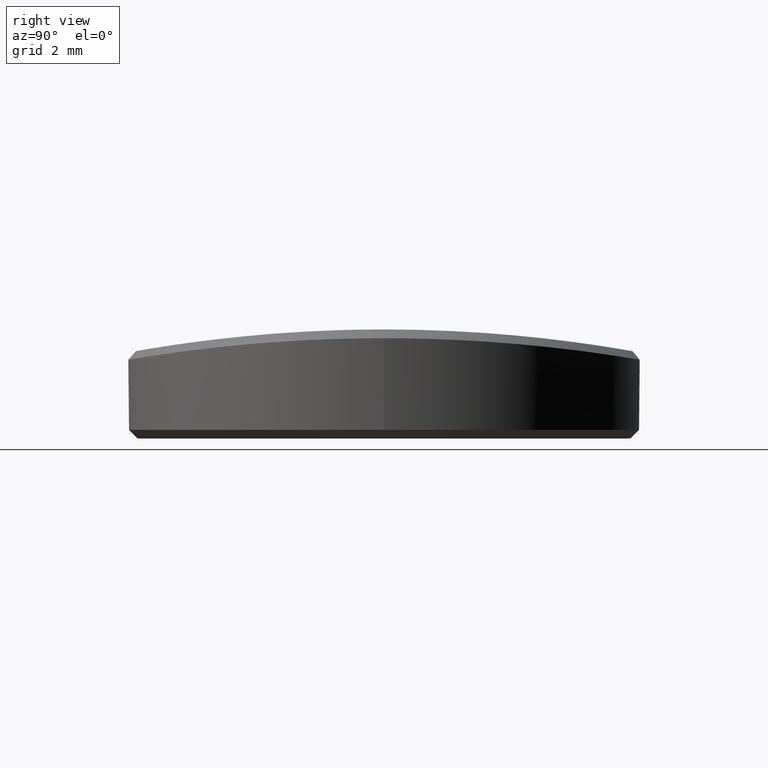
[diagram: clean part render]
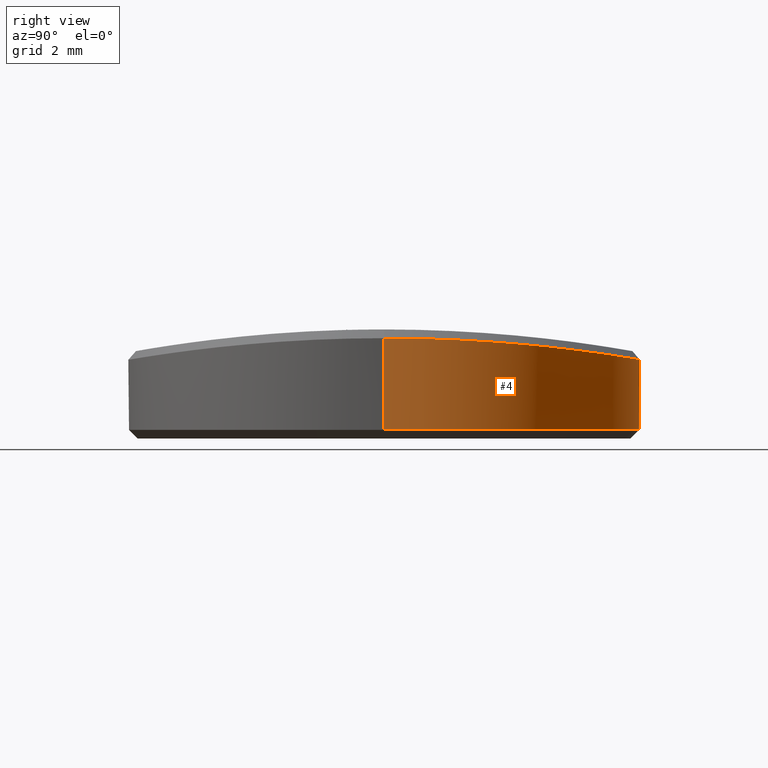
[diagram: same view with one face highlighted and labeled with its STEP entity id]
A machine part, right view. The second image highlights one B-rep face of the part: STEP entity #4.
In plain terms, the highlighted cylindrical surface (partial cylindrical patch) has radius 5.85 mm, axis along (-0, -0, -1).
Its self-contained STEP definition (entity closure, byte-faithful):
#4 = ADVANCED_FACE ( 'NONE', ( #1705 ), #1183, .T. ) ;
#8 = VERTEX_POINT ( 'NONE', #1165 ) ;
#13 = CARTESIAN_POINT ( 'NONE',  ( -5.583669370178141023, 1.745710479170630602, 2.252752072596880151 ) ) ;
#43 = CARTESIAN_POINT ( 'NONE',  ( -2.606191273642994854, 5.237787397284114022, 1.901149713510221106 ) ) ;
#51 = CARTESIAN_POINT ( 'NONE',  ( 5.367950274212946127, 2.327262629023006291, 2.218843895417348389 ) ) ;
#65 = CARTESIAN_POINT ( 'NONE',  ( -4.368635600583296252, 3.891057342284980347, 2.078879122424309500 ) ) ;
#66 = CARTESIAN_POINT ( 'NONE',  ( 1.190780209988201221, 5.727731403619527484, 1.823164343747216032 ) ) ;
#71 = CARTESIAN_POINT ( 'NONE',  ( -5.849999999999999645, 0.000000000000000000, 0.2000000000000005107 ) ) ;
#74 = CARTESIAN_POINT ( 'NONE',  ( 5.569548560108162683, 1.792001354065686280, 2.250486071382419517 ) ) ;
#78 = CARTESIAN_POINT ( 'NONE',  ( -3.244009727739596283, 4.868163265342362322, 1.955238109944705371 ) ) ;
#89 = CARTESIAN_POINT ( 'NONE',  ( -3.924185764372657204, 4.338580061042762281, 2.025719293454604664 ) ) ;
#90 = CARTESIAN_POINT ( 'NONE',  ( 1.605399090074512092, 5.626245279342771077, 1.839914283563657937 ) ) ;
#102 = CARTESIAN_POINT ( 'NONE',  ( -3.919295352930499465, 4.342998364710748405, 2.025165419822312796 ) ) ;
#103 = CARTESIAN_POINT ( 'NONE',  ( 2.829065582226978126, 5.120526366251298533, 1.918741531637461195 ) ) ;
#115 = CARTESIAN_POINT ( 'NONE',  ( -5.081124155078277305, 2.899723887772550857, 2.175798581264229981 ) ) ;
#116 = CARTESIAN_POINT ( 'NONE',  ( 3.312904381799680831, 4.821617378309587920, 1.961768860333868769 ) ) ;
#126 = CARTESIAN_POINT ( 'NONE',  ( 3.268242030311852453, 4.851928431575327494, 1.957521791191752625 ) ) ;
#142 = ORIENTED_EDGE ( 'NONE', *, *, #1637, .T. ) ;
#148 = CARTESIAN_POINT ( 'NONE',  ( 3.547976209167959638, 4.652249731064690863, 1.985023632931986581 ) ) ;
#166 = CARTESIAN_POINT ( 'NONE',  ( -2.959763012449304398, 5.047632239485644767, 1.929542946823485927 ) ) ;
#167 = CARTESIAN_POINT ( 'NONE',  ( 4.177552540272995607, 4.095212824851221178, 2.055344501912360844 ) ) ;
#176 = CARTESIAN_POINT ( 'NONE',  ( 4.157052454398260544, 4.116020918186477751, 2.052879905688773654 ) ) ;
#189 = CARTESIAN_POINT ( 'NONE',  ( 0.000000000000000000, 0.000000000000000000, 6.000000000000000000 ) ) ;
#213 = CARTESIAN_POINT ( 'NONE',  ( 5.179637291097603402, 2.719193297500789974, 2.190337819176772616 ) ) ;
#218 = CARTESIAN_POINT ( 'NONE',  ( 0.3803267324245170888, 5.840803412582006970, 1.804155660013171625 ) ) ;
#227 = CARTESIAN_POINT ( 'NONE',  ( 4.524459955430778280, 3.708340687056341789, 2.098867989951766599 ) ) ;
#231 = CARTESIAN_POINT ( 'NONE',  ( -4.821230536514848453, 3.313470630647945558, 2.138797309545594327 ) ) ;
#232 = CARTESIAN_POINT ( 'NONE',  ( -1.681163904650723406, 5.603278179959879424, 1.843648430470701483 ) ) ;
#241 = CARTESIAN_POINT ( 'NONE',  ( 5.771354464512325144, 0.9572406626820968434, 2.283297655263057280 ) ) ;
#245 = CARTESIAN_POINT ( 'NONE',  ( -4.507136495372269458, 3.729376648159360652, 2.096613717475834360 ) ) ;
#246 = CARTESIAN_POINT ( 'NONE',  ( -2.220929245299336330, 5.412069486761653003, 1.874220337276549797 ) ) ;
#254 = CARTESIAN_POINT ( 'NONE',  ( 5.847638600351667826, 0.1920655019597548030, 2.295992756374706900 ) ) ;
#258 = CARTESIAN_POINT ( 'NONE',  ( -3.745576861151586279, 4.493876105754369910, 2.005917336544432494 ) ) ;
#259 = CARTESIAN_POINT ( 'NONE',  ( -0.7638218091999714465, 5.800711609506312705, 1.810939258170003674 ) ) ;
#270 = CARTESIAN_POINT ( 'NONE',  ( -4.516697367750105663, 3.717793546728353604, 2.097856747914408349 ) ) ;
#283 = CARTESIAN_POINT ( 'NONE',  ( -5.393527732506773198, 2.265605758080615928, 2.222811016619159474 ) ) ;
#294 = CARTESIAN_POINT ( 'NONE',  ( 3.768073745474565861, 4.474930018188604919, 2.008367733557180568 ) ) ;
#301 = DIRECTION ( 'NONE',  ( -0.000000000000000000, -0.000000000000000000, -1.000000000000000000 ) ) ;
#306 = AXIS2_PLACEMENT_3D ( 'NONE', #739, #2028, #562 ) ;
#332 = CARTESIAN_POINT ( 'NONE',  ( 3.970509151620389421, 4.296298570541830841, 2.030996391344854324 ) ) ;
#337 = ORIENTED_EDGE ( 'NONE', *, *, #705, .T. ) ;
#342 = CARTESIAN_POINT ( 'NONE',  ( 3.994327211382520559, 4.274158100182073206, 2.033736428729331802 ) ) ;
#345 = CARTESIAN_POINT ( 'NONE',  ( -5.664636003772448802, 1.466418205104378591, 2.265796700327921798 ) ) ;
#354 = CARTESIAN_POINT ( 'NONE',  ( -5.493544175709287103, 2.014854172710420332, 2.238409234206179210 ) ) ;
#362 = CARTESIAN_POINT ( 'NONE',  ( -5.756174478438737196, 1.047974547446882232, 2.280787337391838587 ) ) ;
#367 = CARTESIAN_POINT ( 'NONE',  ( 5.849999999999999645, 0.09595624366058493060, 2.296389640675963850 ) ) ;
#371 = CARTESIAN_POINT ( 'NONE',  ( -1.375657233548659875, 5.687384582380738074, 1.829871421779391882 ) ) ;
#378 = CARTESIAN_POINT ( 'NONE',  ( 4.537602610172962514, 3.692249339039593181, 2.100583628464546049 ) ) ;
#383 = CARTESIAN_POINT ( 'NONE',  ( 2.539652541083299742, 5.271505446578008680, 1.896044689871365430 ) ) ;
#394 = CARTESIAN_POINT ( 'NONE',  ( 5.168029451239929628, 2.741190662398158118, 2.188612276609431806 ) ) ;
#398 = CARTESIAN_POINT ( 'NONE',  ( -5.366987360267036600, 2.327763556116130506, 2.218711451913111699 ) ) ;
#406 = CARTESIAN_POINT ( 'NONE',  ( 5.686675501226842400, 1.378479273593564036, 2.269381632583660213 ) ) ;
#411 = CARTESIAN_POINT ( 'NONE',  ( -3.641777834456277674, 4.578332842094186894, 1.994842361991917556 ) ) ;
#412 = CARTESIAN_POINT ( 'NONE',  ( -2.083861355436783747, 5.466637251212510762, 1.865614890965980655 ) ) ;
#420 = CARTESIAN_POINT ( 'NONE',  ( 4.529349551319035605, 3.702368872958615054, 2.099505676826622480 ) ) ;
#424 = CARTESIAN_POINT ( 'NONE',  ( -4.058968382415645060, 4.212922791840992609, 2.041244073813963222 ) ) ;
#435 = CARTESIAN_POINT ( 'NONE',  ( -4.650133988120065176, 3.550770170895329425, 2.115424383910148087 ) ) ;
#446 = CARTESIAN_POINT ( 'NONE',  ( -4.496655254763119558, 3.742032023171239619, 2.095252829181217358 ) ) ;
#457 = CARTESIAN_POINT ( 'NONE',  ( 3.376642714921757271, 4.777477377873611708, 1.967914186012179378 ) ) ;
#473 = CARTESIAN_POINT ( 'NONE',  ( 5.849999999999999645, 7.164183775012015436E-16, 6.000000000000000000 ) ) ;
#477 = CARTESIAN_POINT ( 'NONE',  ( 3.725774452429939210, 4.510114581631542663, 2.003794455023834686 ) ) ;
#506 = VERTEX_POINT ( 'NONE', #71 ) ;
#528 = CARTESIAN_POINT ( 'NONE',  ( 5.624226238756269147, 1.610247005447729585, 2.259269400647534898 ) ) ;
#539 = CARTESIAN_POINT ( 'NONE',  ( 5.610139271587875065, 1.658613082512465198, 2.257000626011549382 ) ) ;
#545 = CARTESIAN_POINT ( 'NONE',  ( 2.280736288076715912, 5.387140741615961126, 1.878126040796778806 ) ) ;
#552 = CARTESIAN_POINT ( 'NONE',  ( 4.283415732349283189, 3.984614521857469782, 2.068248874640216783 ) ) ;
#556 = CARTESIAN_POINT ( 'NONE',  ( -4.030612345513333139, 4.239956356230680790, 2.037940018444801549 ) ) ;
#557 = CARTESIAN_POINT ( 'NONE',  ( -1.539362852713601182, 5.644200408645211553, 1.836968501980852819 ) ) ;
#562 = DIRECTION ( 'NONE',  ( 1.000000000000000000, 0.000000000000000000, 0.000000000000000000 ) ) ;
#566 = CARTESIAN_POINT ( 'NONE',  ( 4.336949315899835788, 3.925988892868450986, 2.074920073782472230 ) ) ;
#569 = CARTESIAN_POINT ( 'NONE',  ( -3.692620153349623013, 4.537300952717241209, 2.000240310321776072 ) ) ;
#570 = CARTESIAN_POINT ( 'NONE',  ( -1.235918735989061767, 5.718736854187141283, 1.824664308211790154 ) ) ;
#581 = CARTESIAN_POINT ( 'NONE',  ( 4.867175327965475695, 3.245491916795070431, 2.145206304013703491 ) ) ;
#585 = CARTESIAN_POINT ( 'NONE',  ( -3.323418929774441644, 4.815038824961376918, 1.962714038214857792 ) ) ;
#586 = CARTESIAN_POINT ( 'NONE',  ( 2.147315595145171230, 5.442534232966238505, 1.869442481157997271 ) ) ;
#597 = CARTESIAN_POINT ( 'NONE',  ( -4.998596629410877235, 3.041756003177448875, 2.163793051682840307 ) ) ;
#607 = CARTESIAN_POINT ( 'NONE',  ( -4.588237106477108362, 3.630679832522828665, 2.107176184946987441 ) ) ;
#638 = CARTESIAN_POINT ( 'NONE',  ( 3.928994795316044897, 4.334225538387255661, 2.026264643323831827 ) ) ;
#641 = CARTESIAN_POINT ( 'NONE',  ( 5.850000000003137579, 2.505704322103076828E-14, 2.296389780047419116 ) ) ;
#656 = CARTESIAN_POINT ( 'NONE',  ( -3.105272289173445888, 4.958235362402946045, 1.942447280731172565 ) ) ;
#661 = ORIENTED_EDGE ( 'NONE', *, *, #1121, .F. ) ;
#669 = DIRECTION ( 'NONE',  ( -0.000000000000000000, -0.000000000000000000, -1.000000000000000000 ) ) ;
#674 = B_SPLINE_CURVE_WITH_KNOTS ( 'NONE', 3,
 ( #1163, #1680, #2001, #1359, #1181, #1822, #362, #2010, #1037, #1701, #345, #1673, #13, #1171, #1831, #354, #1007, #283, #2083, #398, #1262, #903, #2072, #770, #781, #1921, #1090, #115, #597, #938, #1740, #1050, #1438, #231, #1565, #1752, #435, #607, #270, #927, #245, #446, #1102, #891, #65, #1763, #914, #1225, #2059, #1714, #1896, #1448, #1238, #1590, #1601, #1553, #1250, #424, #556, #1578, #1909, #733, #89, #102, #1212, #1077, #1871, #1400, #258, #2046, #1412, #569, #1885, #411, #758, #1064, #1727, #585, #78, #1426, #794, #1304, #656, #166, #1932, #948, #1386, #1065, #1702, #43, #904, #1540, #246, #1872, #1427, #412, #1051, #1078, #232, #1690, #892, #557, #371, #570, #746, #1897, #259, #708, #2024, #915, #1401, #218, #1554, #867, #66, #1251, #2047, #2060, #90, #1373, #1728, #1025, #1226, #586, #1239, #545, #1528, #1201, #383, #879, #1213, #1753, #1612, #103, #2096, #771, #2127, #2085, #126, #1764, #116, #457, #783, #148, #1952, #1449, #1284, #477, #1112, #294, #1124, #960, #638, #1622, #1135, #1820, #1810, #332, #342, #1989, #1305, #989, #176, #167, #831, #1196, #552, #1221, #566, #1208, #1736, #1857, #1073, #1185, #1525, #227, #420, #378, #1723, #887, #692, #1234, #1574, #1046, #581, #703, #1396, #1881, #1368, #1355, #1867, #1536, #394, #213, #2007, #1034, #1697, #51, #717, #1710, #1381, #1561, #1549, #74, #539, #528, #729, #406, #1060, #899, #2031, #241, #742, #1845, #2055, #1892, #254, #367, #1022 ),
 .UNSPECIFIED., .F., .F.,
 ( 4, 2, 2, 2, 2, 1, 2, 2, 1, 2, 2, 1, 1, 2, 2, 1, 1, 1, 2, 2, 1, 1, 2, 2, 2, 1, 1, 1, 2, 2, 1, 1, 1, 2, 2, 2, 1, 2, 2, 2, 1, 1, 1, 1, 2, 2, 1, 1, 1, 2, 2, 2, 1, 1, 1, 2, 2, 1, 1, 1, 2, 2, 1, 1, 2, 2, 1, 1, 2, 2, 2, 2, 2, 2, 2, 1, 2, 2, 1, 2, 2, 1, 1, 2, 2, 1, 1, 1, 2, 2, 1, 1, 2, 2, 2, 1, 1, 1, 2, 2, 1, 1, 1, 2, 2, 2, 1, 2, 2, 2, 1, 1, 1, 2, 2, 1, 1, 1, 2, 2, 2, 1, 1, 1, 2, 2, 1, 1, 1, 2, 2, 1, 1, 2, 2, 1, 2, 2, 1, 2, 2, 4 ),
 ( 0.000000000000000000, 0.01562470243699142468, 0.02343705365548713268, 0.03124940487398284242, 0.03515558048323069035, 0.03906175609247854869, 0.04687410731097423067, 0.05078028292022207513, 0.05468645852946991265, 0.06249880974796560157, 0.06445189755258949604, 0.06640498535721341133, 0.07031116096646113089, 0.07812351218495657001, 0.07910005608726844439, 0.08007659998958033265, 0.08202968779420412304, 0.08593586340345174546, 0.09374821462194699029, 0.09472475852425893406, 0.09570130242657086395, 0.09765439023119465434, 0.1015605658404422074, 0.1093729170589373273, 0.1098611890100932575, 0.1103494609612491600, 0.1113260048635610483, 0.1132790926681848387, 0.1171852682774324611, 0.1174294042530104054, 0.1176735402285883497, 0.1181618121797443771, 0.1191383560820563348, 0.1210914438866802362, 0.1249976194959280112, 0.1259741633982399689, 0.1269507073005519127, 0.1289037951051758280, 0.1328099707144236585, 0.1330541066900016722, 0.1332982426655797414, 0.1337865146167357411, 0.1347630585190477959, 0.1367161463236720165, 0.1406223219329204022, 0.1411105938840764851, 0.1415988658352325402, 0.1425754097375445950, 0.1445284975421686491, 0.1484346731514168405, 0.1562470243699132233, 0.1572235682722253058, 0.1582001121745373606, 0.1601531999791614980, 0.1640593755884097449, 0.1718717268069063220, 0.1728482707092184045, 0.1738248146115304871, 0.1757779024161545689, 0.1796840780254027881, 0.1874964292438991709, 0.1894495170485233082, 0.1914026048531474455, 0.1953087804623957480, 0.2031211316808923251, 0.2050742194855164624, 0.2070273072901405720, 0.2109334828993888467, 0.2187458341178853682, 0.2265581853363819453, 0.2343705365548784947, 0.2499952389918715656, 0.2656199414288646921, 0.2812446438658577352, 0.2851508194751060654, 0.2890569950843543401, 0.2968693463028508894, 0.3007755219120992196, 0.3046816975213474943, 0.3124940487398440436, 0.3144471365444682087, 0.3164002243490923183, 0.3203063999583405375, 0.3281187511768368648, 0.3290952950791489195, 0.3300718389814609743, 0.3320249267860849729, 0.3359311023953330255, 0.3437434536138290753, 0.3447199975161411301, 0.3456965414184531293, 0.3476496292230770724, 0.3515558048323248475, 0.3593681560508205086, 0.3598564280019764250, 0.3603446999531324524, 0.3613212438554443962, 0.3632743316600682837, 0.3671805072693161698, 0.3674246432448941557, 0.3676687792204721972, 0.3681570511716280025, 0.3691335950739398353, 0.3710866828785633897, 0.3749928584878104987, 0.3759694023901222204, 0.3769459462924339421, 0.3788990340970573856, 0.3828052097063041614, 0.3832934816574599668, 0.3837817536086158277, 0.3847582975109273828, 0.3867113853155505487, 0.3906175609247969360, 0.3911058328759527414, 0.3915941048271085467, 0.3925706487294201574, 0.3945237365340433788, 0.3984299121432897661, 0.4062422633617825407, 0.4072188072640940959, 0.4081953511664056511, 0.4101484389710288725, 0.4140546145802751488, 0.4218669657987677568, 0.4228435097010793120, 0.4238200536033909227, 0.4257731414080140331, 0.4296793170172603094, 0.4374916682357528064, 0.4394447560403760278, 0.4413978438449991382, 0.4453040194542453589, 0.4531163706727378560, 0.4570225462819840767, 0.4609287218912302975, 0.4687410731097227945, 0.4726472487189689042, 0.4765534243282151250, 0.4843657755467075665, 0.4921781267652000080, 0.4999904779836923940 ),
 .UNSPECIFIED. ) ;
#692 = CARTESIAN_POINT ( 'NONE',  ( 4.633133475778357990, 3.572252651257928679, 2.113175509777406536 ) ) ;
#703 = CARTESIAN_POINT ( 'NONE',  ( 4.875247294039774637, 3.233360756393804714, 2.146337410923344180 ) ) ;
#705 = EDGE_CURVE ( 'NONE', #1479, #506, #1985, .T. ) ;
#708 = CARTESIAN_POINT ( 'NONE',  ( -0.6691824248088438232, 5.812373938070344970, 1.808967761784147088 ) ) ;
#717 = CARTESIAN_POINT ( 'NONE',  ( 5.412223067964446521, 2.220557431316037444, 2.225710442756430929 ) ) ;
#729 = CARTESIAN_POINT ( 'NONE',  ( 5.649957647369139302, 1.517496222796903771, 2.263427446822189992 ) ) ;
#733 = CARTESIAN_POINT ( 'NONE',  ( -3.927720581938957789, 4.335379371778359747, 2.026120126516981923 ) ) ;
#739 = CARTESIAN_POINT ( 'NONE',  ( 0.000000000000000000, 0.000000000000000000, 0.2000000000000005107 ) ) ;
#742 = CARTESIAN_POINT ( 'NONE',  ( 5.794458559663502761, 0.8142549055208082587, 2.287120738884988569 ) ) ;
#746 = CARTESIAN_POINT ( 'NONE',  ( -1.050395605062403481, 5.755702859101798907, 1.818500243929346949 ) ) ;
#750 = DIRECTION ( 'NONE',  ( -0.000000000000000000, -0.000000000000000000, -1.000000000000000000 ) ) ;
#752 = AXIS2_PLACEMENT_3D ( 'NONE', #189, #669, #1994 ) ;
#758 = CARTESIAN_POINT ( 'NONE',  ( -3.571516918765737181, 4.633708359877612537, 1.987489366177601857 ) ) ;
#770 = CARTESIAN_POINT ( 'NONE',  ( -5.152048263178179432, 2.771110329100462621, 2.186242651624255906 ) ) ;
#771 = CARTESIAN_POINT ( 'NONE',  ( 3.041289738415153820, 4.998884367659465866, 1.936631650157296880 ) ) ;
#781 = CARTESIAN_POINT ( 'NONE',  ( -5.147279847652229456, 2.779952800158707493, 2.185537012103968557 ) ) ;
#783 = CARTESIAN_POINT ( 'NONE',  ( 3.433036558636147095, 4.736984871447344148, 1.973483265150593136 ) ) ;
#794 = CARTESIAN_POINT ( 'NONE',  ( -3.210496530286345074, 4.890334604018058862, 1.952107426806933610 ) ) ;
#831 = CARTESIAN_POINT ( 'NONE',  ( 4.207270849087096920, 4.064814002091702072, 2.058930619505761062 ) ) ;
#867 = CARTESIAN_POINT ( 'NONE',  ( 0.9523342281979474411, 5.775239576497652294, 1.815243016050009928 ) ) ;
#879 = CARTESIAN_POINT ( 'NONE',  ( 2.671345463622348593, 5.205424972763312397, 1.906067642728524580 ) ) ;
#887 = CARTESIAN_POINT ( 'NONE',  ( 4.578227725425624506, 3.641906945937392948, 2.105911107773411839 ) ) ;
#891 = CARTESIAN_POINT ( 'NONE',  ( -4.418664091083211787, 3.834300106110881234, 2.085209371718220073 ) ) ;
#892 = CARTESIAN_POINT ( 'NONE',  ( -1.609625478272386667, 5.624251165884537329, 1.840229132289892711 ) ) ;
#899 = CARTESIAN_POINT ( 'NONE',  ( 5.745467464622209697, 1.101954756993922535, 2.279026936102499956 ) ) ;
#903 = CARTESIAN_POINT ( 'NONE',  ( -5.270249516015925728, 2.542209063947307612, 2.203896399512343507 ) ) ;
#904 = CARTESIAN_POINT ( 'NONE',  ( -2.454691480103999179, 5.311589452026530545, 1.889894753321293086 ) ) ;
#914 = CARTESIAN_POINT ( 'NONE',  ( -4.330180054249814781, 3.933452095435138407, 2.074074244377926757 ) ) ;
#915 = CARTESIAN_POINT ( 'NONE',  ( -0.1933376377655410816, 5.849900152875240344, 1.802603818008545522 ) ) ;
#927 = CARTESIAN_POINT ( 'NONE',  ( -4.514062142523624921, 3.720990801545738691, 2.097513939068155420 ) ) ;
#938 = CARTESIAN_POINT ( 'NONE',  ( -4.920070341261739699, 3.166323818699254389, 2.152609436805905663 ) ) ;
#948 = CARTESIAN_POINT ( 'NONE',  ( -2.748838709697592364, 5.163962856847356342, 1.912265515049686782 ) ) ;
#957 = VECTOR ( 'NONE', #750, 1000.000000000000000 ) ;
#960 = CARTESIAN_POINT ( 'NONE',  ( 3.886973822284908842, 4.372274125379764342, 2.021499660806148846 ) ) ;
#965 = ORIENTED_EDGE ( 'NONE', *, *, #1694, .T. ) ;
#989 = CARTESIAN_POINT ( 'NONE',  ( 4.147314353805876763, 4.125840874158924976, 2.051712804862482642 ) ) ;
#1007 = CARTESIAN_POINT ( 'NONE',  ( -5.440904859052966280, 2.151471113591122197, 2.230158292290976174 ) ) ;
#1022 = CARTESIAN_POINT ( 'NONE',  ( 5.850000000003137579, 2.505704322103076828E-14, 2.296389780047419116 ) ) ;
#1025 = CARTESIAN_POINT ( 'NONE',  ( 1.876974630391354149, 5.540910280789193898, 1.853743809216538141 ) ) ;
#1034 = CARTESIAN_POINT ( 'NONE',  ( 5.236171165137804451, 2.609450376801705662, 2.198783544912051191 ) ) ;
#1037 = CARTESIAN_POINT ( 'NONE',  ( -5.718386746963068035, 1.234828722546688295, 2.274578002344213257 ) ) ;
#1046 = CARTESIAN_POINT ( 'NONE',  ( 4.813846495809793957, 3.325153085740697456, 2.137746778979585205 ) ) ;
#1050 = CARTESIAN_POINT ( 'NONE',  ( -4.851955404796779447, 3.268202479152973350, 2.143077983267249742 ) ) ;
#1051 = CARTESIAN_POINT ( 'NONE',  ( -1.926256609803503217, 5.525217954497148476, 1.856290008041909356 ) ) ;
#1060 = CARTESIAN_POINT ( 'NONE',  ( 5.717851024846801522, 1.239952560235295875, 2.274487167843591617 ) ) ;
#1064 = CARTESIAN_POINT ( 'NONE',  ( -3.512757916713803219, 4.678174392195935560, 1.981491094258466701 ) ) ;
#1065 = CARTESIAN_POINT ( 'NONE',  ( -2.715081699909991819, 5.181793471765507419, 1.909592530519665710 ) ) ;
#1073 = CARTESIAN_POINT ( 'NONE',  ( 4.394059859503482102, 3.862104149128380293, 2.082101243541222946 ) ) ;
#1077 = CARTESIAN_POINT ( 'NONE',  ( -3.895033738819371205, 4.364803033026313450, 2.022425545345267750 ) ) ;
#1078 = CARTESIAN_POINT ( 'NONE',  ( -1.792157905072499391, 5.569495939878746249, 1.849139404223250294 ) ) ;
#1090 = CARTESIAN_POINT ( 'NONE',  ( -5.120215536296703007, 2.829628376765722653, 2.181540840777834944 ) ) ;
#1102 = CARTESIAN_POINT ( 'NONE',  ( -4.471544561703061582, 3.772092672113532164, 2.092003531817490547 ) ) ;
#1112 = CARTESIAN_POINT ( 'NONE',  ( 3.738284507125646083, 4.499770683318368825, 2.005142255407300844 ) ) ;
#1121 = EDGE_CURVE ( 'NONE', #8, #506, #1863, .T. ) ;
#1124 = CARTESIAN_POINT ( 'NONE',  ( 3.830005812450175018, 4.422383762197619639, 2.015141132210775510 ) ) ;
#1135 = CARTESIAN_POINT ( 'NONE',  ( 3.932175260194847866, 4.331339439794406942, 2.026625763922005774 ) ) ;
#1163 = CARTESIAN_POINT ( 'NONE',  ( -5.849999999999999645, 5.810646018164500326E-16, 2.296389780299097350 ) ) ;
#1165 = CARTESIAN_POINT ( 'NONE',  ( -5.849999999999999645, 5.810646018164500326E-16, 2.296389780299097350 ) ) ;
#1171 = CARTESIAN_POINT ( 'NONE',  ( -5.569954131890729521, 1.788957012197931018, 2.250557735540422932 ) ) ;
#1181 = CARTESIAN_POINT ( 'NONE',  ( -5.800610019621201374, 0.7645505513365433714, 2.288145099401496019 ) ) ;
#1183 = CYLINDRICAL_SURFACE ( 'NONE', #752, 5.849999999999999645 ) ;
#1185 = CARTESIAN_POINT ( 'NONE',  ( 4.450350775390213620, 3.797488034149842928, 2.089259018739975993 ) ) ;
#1196 = CARTESIAN_POINT ( 'NONE',  ( 4.233953491683037917, 4.036918829534315911, 2.062184406873219356 ) ) ;
#1201 = CARTESIAN_POINT ( 'NONE',  ( 2.388061931300731633, 5.340742781491494284, 1.885355118791219420 ) ) ;
#1208 = CARTESIAN_POINT ( 'NONE',  ( 4.342833274201627347, 3.919482304905172576, 2.075656240523295448 ) ) ;
#1212 = CARTESIAN_POINT ( 'NONE',  ( -3.911978084704501146, 4.349597984835233966, 2.024337463601399989 ) ) ;
#1213 = CARTESIAN_POINT ( 'NONE',  ( 2.770718049136225325, 5.152259533497916877, 1.914015089051340990 ) ) ;
#1221 = CARTESIAN_POINT ( 'NONE',  ( 4.311192616763355190, 3.954400103712106151, 2.071701043860986857 ) ) ;
#1225 = CARTESIAN_POINT ( 'NONE',  ( -4.327266794804970118, 3.936656801892227442, 2.073710567474809086 ) ) ;
#1226 = CARTESIAN_POINT ( 'NONE',  ( 2.011632450154223317, 5.494702493971550972, 1.861169753202346788 ) ) ;
#1234 = CARTESIAN_POINT ( 'NONE',  ( 4.677338344061116260, 3.513868150720842465, 2.119112844620455238 ) ) ;
#1238 = CARTESIAN_POINT ( 'NONE',  ( -4.217255017377139481, 4.054569357582546552, 2.060137442465837854 ) ) ;
#1239 = CARTESIAN_POINT ( 'NONE',  ( 2.260726910709280890, 5.395573790764061961, 1.876806856659841261 ) ) ;
#1250 = CARTESIAN_POINT ( 'NONE',  ( -4.090770159296998720, 4.181905829794488660, 2.044992324593081445 ) ) ;
#1251 = CARTESIAN_POINT ( 'NONE',  ( 1.235120271155364380, 5.718322714467542589, 1.824729806261661480 ) ) ;
#1262 = CARTESIAN_POINT ( 'NONE',  ( -5.339073003924452721, 2.391781809392129698, 2.214413061566720575 ) ) ;
#1278 = VERTEX_POINT ( 'NONE', #641 ) ;
#1280 = LINE ( 'NONE', #473, #2020 ) ;
#1284 = CARTESIAN_POINT ( 'NONE',  ( 3.717491966607634257, 4.516943910215488245, 2.002903598633758442 ) ) ;
#1304 = CARTESIAN_POINT ( 'NONE',  ( -3.178819269085211729, 4.911081071908640183, 1.949168956640831674 ) ) ;
#1305 = CARTESIAN_POINT ( 'NONE',  ( 4.088215497714707602, 4.184908880116929630, 2.044659919370467538 ) ) ;
#1337 = CARTESIAN_POINT ( 'NONE',  ( 5.849999999999999645, 7.164183775012015436E-16, 0.2000000000000005107 ) ) ;
#1355 = CARTESIAN_POINT ( 'NONE',  ( 5.045464680468866980, 2.963425390972042717, 2.170558015186441203 ) ) ;
#1359 = CARTESIAN_POINT ( 'NONE',  ( -5.812052018139510778, 0.6722080516415375184, 2.290050786257389781 ) ) ;
#1368 = CARTESIAN_POINT ( 'NONE',  ( 4.956536795764288073, 3.107973030490773336, 2.157814390670937055 ) ) ;
#1373 = CARTESIAN_POINT ( 'NONE',  ( 1.744877547203237400, 5.583928983314592642, 1.846793946277019094 ) ) ;
#1381 = CARTESIAN_POINT ( 'NONE',  ( 5.440040000144650278, 2.151524272092336876, 2.230041898870996686 ) ) ;
#1386 = CARTESIAN_POINT ( 'NONE',  ( -2.736914513562085816, 5.170295075396661666, 1.911317355810483454 ) ) ;
#1393 = CARTESIAN_POINT ( 'NONE',  ( -5.849999999999999645, 0.000000000000000000, 6.000000000000000000 ) ) ;
#1396 = CARTESIAN_POINT ( 'NONE',  ( 4.889095368755313586, 3.212382983743534037, 2.148282394558468145 ) ) ;
#1400 = CARTESIAN_POINT ( 'NONE',  ( -3.797085010190871301, 4.450692118299259370, 2.011513464403153595 ) ) ;
#1401 = CARTESIAN_POINT ( 'NONE',  ( 0.1872473381581420682, 5.850098262007159988, 1.802569576816725361 ) ) ;
#1412 = CARTESIAN_POINT ( 'NONE',  ( -3.702845520634601151, 4.528959989088982674, 2.001333001617710661 ) ) ;
#1426 = CARTESIAN_POINT ( 'NONE',  ( -3.231648174375197247, 4.876382941001926596, 1.954079240677468965 ) ) ;
#1427 = CARTESIAN_POINT ( 'NONE',  ( -2.151603646322150176, 5.440008672702905557, 1.869821807605360542 ) ) ;
#1438 = CARTESIAN_POINT ( 'NONE',  ( -4.839748750070599570, 3.286251775361767713, 2.141375520701544577 ) ) ;
#1448 = CARTESIAN_POINT ( 'NONE',  ( -4.266392392387214016, 4.002619653856773319, 2.066161503744046612 ) ) ;
#1449 = CARTESIAN_POINT ( 'NONE',  ( 3.714363715220030837, 4.519518323203068455, 2.002567511567118430 ) ) ;
#1479 = VERTEX_POINT ( 'NONE', #1337 ) ;
#1525 = CARTESIAN_POINT ( 'NONE',  ( 4.493947773566835835, 3.745498623841818198, 2.094893058364026395 ) ) ;
#1528 = CARTESIAN_POINT ( 'NONE',  ( 2.323595718612136540, 5.368793749267695148, 1.880988989882558915 ) ) ;
#1536 = CARTESIAN_POINT ( 'NONE',  ( 5.161592724080502848, 2.753286510077219251, 2.187657105235128796 ) ) ;
#1540 = CARTESIAN_POINT ( 'NONE',  ( -2.326528050995971153, 5.368252294977161831, 1.881089856201779709 ) ) ;
#1549 = CARTESIAN_POINT ( 'NONE',  ( 5.525233489471677473, 1.926213520892088304, 2.243417166046448585 ) ) ;
#1553 = CARTESIAN_POINT ( 'NONE',  ( -4.112717259297682837, 4.160323738669728044, 2.047589868536926705 ) ) ;
#1554 = CARTESIAN_POINT ( 'NONE',  ( 0.7638774693596748211, 5.803113314388320454, 1.810534840299687032 ) ) ;
#1561 = CARTESIAN_POINT ( 'NONE',  ( 5.466655439693976604, 2.083812933088633468, 2.234199996084178519 ) ) ;
#1565 = CARTESIAN_POINT ( 'NONE',  ( -4.776542690130606061, 3.377976912277203869, 2.132609862363298525 ) ) ;
#1574 = CARTESIAN_POINT ( 'NONE',  ( 4.762133789907011305, 3.399063875381677313, 2.130601787045095730 ) ) ;
#1578 = CARTESIAN_POINT ( 'NONE',  ( -3.978694125782041624, 4.288910838855160002, 2.031924168253079976 ) ) ;
#1590 = CARTESIAN_POINT ( 'NONE',  ( -4.179307454571595137, 4.093858721675335488, 2.055531201279192643 ) ) ;
#1601 = CARTESIAN_POINT ( 'NONE',  ( -4.124882101232455689, 4.148262832558561541, 2.049035649377754176 ) ) ;
#1612 = CARTESIAN_POINT ( 'NONE',  ( 2.799260131922840067, 5.136805408760934277, 1.916319187063833418 ) ) ;
#1622 = CARTESIAN_POINT ( 'NONE',  ( 3.929357167874984569, 4.333896153217845715, 2.026305829633076261 ) ) ;
#1637 = EDGE_CURVE ( 'NONE', #8, #1278, #674, .T. ) ;
#1673 = CARTESIAN_POINT ( 'NONE',  ( -5.626077637626504924, 1.605996658030719226, 2.259559280247798618 ) ) ;
#1680 = CARTESIAN_POINT ( 'NONE',  ( -5.849999999999998757, 0.1917408704044361312, 2.296389806036200021 ) ) ;
#1690 = CARTESIAN_POINT ( 'NONE',  ( -1.656485381012256619, 5.610628444278757065, 1.842451557942233364 ) ) ;
#1694 = EDGE_CURVE ( 'NONE', #1278, #1479, #1280, .T. ) ;
#1697 = CARTESIAN_POINT ( 'NONE',  ( 5.310704324162053069, 2.456664739126872554, 2.210040465651208930 ) ) ;
#1701 = CARTESIAN_POINT ( 'NONE',  ( -5.697616173499815417, 1.327372932277313344, 2.271179439051856264 ) ) ;
#1702 = CARTESIAN_POINT ( 'NONE',  ( -2.682357981541411807, 5.198895295458144439, 1.907022838658725794 ) ) ;
#1705 = FACE_OUTER_BOUND ( 'NONE', #1967, .T. ) ;
#1710 = CARTESIAN_POINT ( 'NONE',  ( 5.421956658463043865, 2.196697041087947611, 2.227223638169973263 ) ) ;
#1714 = CARTESIAN_POINT ( 'NONE',  ( -4.312105730501179401, 3.953276324355065707, 2.071820713387466650 ) ) ;
#1723 = CARTESIAN_POINT ( 'NONE',  ( 4.549919985635467512, 3.677094435925353011, 2.102194528932972872 ) ) ;
#1727 = CARTESIAN_POINT ( 'NONE',  ( -3.397412565640295590, 4.763320602244056623, 1.969900278315811049 ) ) ;
#1728 = CARTESIAN_POINT ( 'NONE',  ( 1.787471925055975630, 5.570427687352633050, 1.848981354108185648 ) ) ;
#1736 = CARTESIAN_POINT ( 'NONE',  ( 4.351546471361229962, 3.909806349879905607, 2.076748390429151936 ) ) ;
#1740 = CARTESIAN_POINT ( 'NONE',  ( -4.856946856382162281, 3.260786191821949398, 2.143775145173192787 ) ) ;
#1752 = CARTESIAN_POINT ( 'NONE',  ( -4.735631214239726106, 3.434909129979387465, 2.127012128518339651 ) ) ;
#1753 = CARTESIAN_POINT ( 'NONE',  ( 2.779441056323633585, 5.147556168520243780, 1.914716994171271169 ) ) ;
#1763 = CARTESIAN_POINT ( 'NONE',  ( -4.330834438100961137, 3.932732386505171984, 2.074155928635368795 ) ) ;
#1764 = CARTESIAN_POINT ( 'NONE',  ( 3.286044945771525505, 4.839888850810044829, 1.959210563610984890 ) ) ;
#1810 = CARTESIAN_POINT ( 'NONE',  ( 3.947087387031469330, 4.317768451605171087, 2.028321773931719640 ) ) ;
#1820 = CARTESIAN_POINT ( 'NONE',  ( 3.936482065690591892, 4.327428330941256895, 2.027114988442340060 ) ) ;
#1822 = CARTESIAN_POINT ( 'NONE',  ( -5.772573953176170392, 0.9534170652924685019, 2.283497148976392221 ) ) ;
#1831 = CARTESIAN_POINT ( 'NONE',  ( -5.540170399066727924, 1.879166882467748545, 2.245811492784920205 ) ) ;
#1845 = CARTESIAN_POINT ( 'NONE',  ( 5.812111193260107278, 0.6715347032444012321, 2.290060651435231076 ) ) ;
#1857 = CARTESIAN_POINT ( 'NONE',  ( 4.364513864936125032, 3.895357408693882473, 2.078376173699174156 ) ) ;
#1863 = LINE ( 'NONE', #1393, #957 ) ;
#1867 = CARTESIAN_POINT ( 'NONE',  ( 5.113864229564787145, 2.842351177499351511, 2.180584967814207076 ) ) ;
#1871 = CARTESIAN_POINT ( 'NONE',  ( -3.861668766439875444, 4.394443085882487665, 2.018681627203673390 ) ) ;
#1872 = CARTESIAN_POINT ( 'NONE',  ( -2.196803319704683233, 5.421913664425513701, 1.872673204974581562 ) ) ;
#1881 = CARTESIAN_POINT ( 'NONE',  ( 4.909692214028737567, 3.180961272167386777, 2.151181200134075322 ) ) ;
#1885 = CARTESIAN_POINT ( 'NONE',  ( -3.677309307416073203, 4.549746992002648760, 1.998607612876244000 ) ) ;
#1892 = CARTESIAN_POINT ( 'NONE',  ( 5.838153575076970192, 0.3843555530779312890, 2.294405497409187422 ) ) ;
#1896 = CARTESIAN_POINT ( 'NONE',  ( -4.289013166386204112, 3.978387894690497806, 2.068952209257709729 ) ) ;
#1897 = CARTESIAN_POINT ( 'NONE',  ( -0.9533603191922026543, 5.772588936920815428, 1.815670006967802896 ) ) ;
#1909 = CARTESIAN_POINT ( 'NONE',  ( -3.950485965953779655, 4.314741822175813368, 2.028703282187403367 ) ) ;
#1921 = CARTESIAN_POINT ( 'NONE',  ( -5.136514070903182017, 2.799794742578574080, 2.183945986581432130 ) ) ;
#1932 = CARTESIAN_POINT ( 'NONE',  ( -2.838150059602923214, 5.116200653254547426, 1.919406119893984020 ) ) ;
#1952 = CARTESIAN_POINT ( 'NONE',  ( 3.627479174396958328, 4.590760025686990708, 1.993253490792345151 ) ) ;
#1967 = EDGE_LOOP ( 'NONE', ( #142, #965, #337, #661 ) ) ;
#1985 = CIRCLE ( 'NONE', #306, 5.849999999999999645 ) ;
#1989 = CARTESIAN_POINT ( 'NONE',  ( 4.046790209905133828, 4.224724647215201578, 2.039813181062581027 ) ) ;
#1994 = DIRECTION ( 'NONE',  ( -1.000000000000000000, 0.000000000000000000, 0.000000000000000000 ) ) ;
#2001 = CARTESIAN_POINT ( 'NONE',  ( -5.840565502290122168, 0.3841144601074085729, 2.294805060742910463 ) ) ;
#2007 = CARTESIAN_POINT ( 'NONE',  ( 5.196902599154749502, 2.686219871495517442, 2.192908521372805897 ) ) ;
#2010 = CARTESIAN_POINT ( 'NONE',  ( -5.727929959633505597, 1.189807630297604613, 2.276143865457005422 ) ) ;
#2020 = VECTOR ( 'NONE', #301, 1000.000000000000000 ) ;
#2024 = CARTESIAN_POINT ( 'NONE',  ( -0.3860188812405018211, 5.840331589717789207, 1.804234906665705074 ) ) ;
#2028 = DIRECTION ( 'NONE',  ( -0.000000000000000000, -0.000000000000000000, 1.000000000000000000 ) ) ;
#2031 = CARTESIAN_POINT ( 'NONE',  ( 5.754727952956321779, 1.052591197379850962, 2.280552672610281828 ) ) ;
#2046 = CARTESIAN_POINT ( 'NONE',  ( -3.709018280851790639, 4.523904400488044431, 2.001994246492680318 ) ) ;
#2047 = CARTESIAN_POINT ( 'NONE',  ( 1.327412301659451899, 5.697605929898757360, 1.828166688094702508 ) ) ;
#2055 = CARTESIAN_POINT ( 'NONE',  ( 5.830912211436967141, 0.4817241565421148675, 2.293195493882940639 ) ) ;
#2059 = CARTESIAN_POINT ( 'NONE',  ( -4.322839483151726725, 3.941521665320559809, 2.073158135709962657 ) ) ;
#2060 = CARTESIAN_POINT ( 'NONE',  ( 1.466103228313932583, 5.664710679280223538, 1.833609400838231318 ) ) ;
#2072 = CARTESIAN_POINT ( 'NONE',  ( -5.204704323262312471, 2.672712795259996721, 2.194047115615216370 ) ) ;
#2083 = CARTESIAN_POINT ( 'NONE',  ( -5.385251851023431513, 2.285191239152050802, 2.221530656469804743 ) ) ;
#2085 = CARTESIAN_POINT ( 'NONE',  ( 3.261100757934786820, 4.856735794747385704, 1.956846507320840312 ) ) ;
#2096 = CARTESIAN_POINT ( 'NONE',  ( 2.899137766620626611, 5.081458511739548101, 1.924527055619417615 ) ) ;
#2127 = CARTESIAN_POINT ( 'NONE',  ( 3.166234090831712589, 4.920137052825960033, 1.947921668173705045 ) ) ;